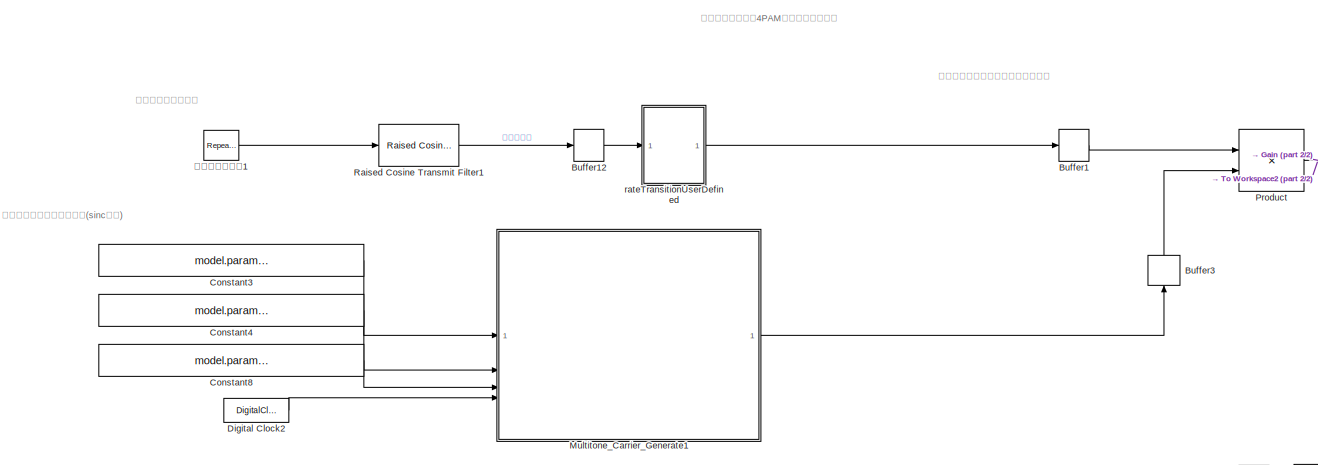
[diagram: root canvas - part 1/2, central region]
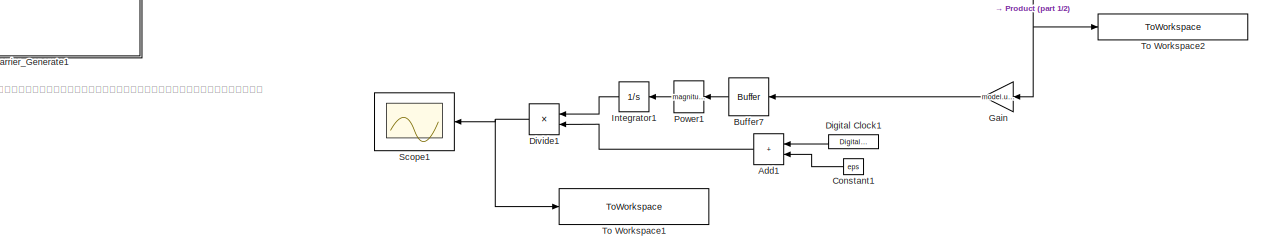
[diagram: root canvas - part 2/2, bottom center region]
MODEL slx_352db9173129
KIND model
CONFIG AbsTol = auto
CONFIG EnableMultiTasking = off
CONFIG FixedStep = auto
CONFIG InitFcn = Parameter_Initialize_5
CONFIG MaxStep = auto
CONFIG MinStep = auto
CONFIG PreLoadFcn = Parameter_Initialize_5
CONFIG RelTol = 1e-3
CONFIG SampleTimeConstraint = Unconstrained
CONFIG SolverName = VariableStepAuto
CONFIG StartTime = 0.0
CONFIG StopTime = 0.01
BLOCK [Sum] Add1
  IconShape = rectangular
  NameLocation = top
BLOCK [Buffer] Buffer1
  N = model.parameter.Raised_Cosine_Transmit_Filter.Output_samples_per_symbol
  OutputFrames = off
BLOCK [Buffer] Buffer12
  N = model.parameter.Buffer12.Output_buffer_size
  OutputFrames = off
BLOCK [Buffer] Buffer3
  N = model.parameter.Raised_Cosine_Transmit_Filter.Output_samples_per_symbol
  NameLocation = right
  OutputFrames = off
BLOCK [Buffer] Buffer7
  N = 1
  NameLocation = top
  OutputFrames = off
BLOCK [Constant] Constant1
  NameLocation = top
  SampleTime = model.parameter.channel_estimate_fs
  Value = eps
BLOCK [Constant] Constant3
  Value = model.parameter.Sine_Carrier_Num
BLOCK [Constant] Constant4
  Value = model.parameter.Sine_Carrier_Freq
BLOCK [Constant] Constant8
  Value = model.parameter.Sine_Carrier_Ampl
BLOCK [DigitalClock] Digital Clock1
  NameLocation = top
  SampleTime = model.parameter.channel_estimate_fs
BLOCK [DigitalClock] Digital Clock2
  SampleTime = model.parameter.Digital_Clock2.CarrierTs
BLOCK [Product] Divide1
  Inputs = */
  NameLocation = top
BLOCK [Gain] Gain
  Gain = model.user_defined.TR.Sig_power_controller_coeffience
  NameLocation = top
BLOCK [Integrator] Integrator1
  NameLocation = top
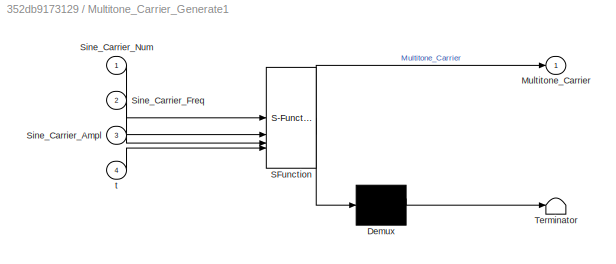
BLOCK [SubSystem] Multitone_Carrier_Generate1
  ErrorFcn = Stateflow.Translate.translate
  LibrarySourceBlock = simulink/User-Defined\nFunctions/MATLAB Function
  PermitHierarchicalResolution = ExplicitOnly
  SFBlockType = MATLAB Function
  TreatAsAtomicUnit = on
BLOCK [Demux] Multitone_Carrier_Generate1/ Demux 
  Outputs = 1
BLOCK [S-Function] Multitone_Carrier_Generate1/ SFunction 
  EnableBusSupport = on
  FunctionName = sf_sfun
  PortCounts = [4 2]
  SFcnIsStateOwnerBlock = off
  SFunctionDeploymentMode = off
  Tag = Stateflow S-Function 1
BLOCK [Terminator] Multitone_Carrier_Generate1/ Terminator 
BLOCK [Outport] Multitone_Carrier_Generate1/Multitone_Carrier
BLOCK [Inport] Multitone_Carrier_Generate1/Sine_Carrier_Ampl
  Port = 3
BLOCK [Inport] Multitone_Carrier_Generate1/Sine_Carrier_Freq
  Port = 2
BLOCK [Inport] Multitone_Carrier_Generate1/Sine_Carrier_Num
BLOCK [Inport] Multitone_Carrier_Generate1/t
  Port = 4
BLOCK [Math] Power1
  NameLocation = top
  Operator = magnitude^2
BLOCK [Product] Product
BLOCK [Reference] Raised Cosine Transmit Filter1  REF=commfilt2/Raised Cosine
Transmit Filter
  SourceBlock = commfilt2/Raised Cosine\nTransmit Filter
  SourceType = Raised Cosine Transmit Filter
BLOCK [Scope] Scope1
  Floating = off
  NameLocation = top
  NumInputPorts = 1
  ScopeSpecificationString = Simulink.scopes.TimeScopeBlockCfg('CurrentConfiguration', extmgr.ConfigurationSet(extmgr.Configuration('Core','General UI',true),extmgr.Configuration('Core','Source UI',true),extmgr.Configuration('Sources','WiredSimulink',true),extmgr.Configuration('Visuals','Time Domain',true,'SerializedDisplays',{struct('MinYLimReal','-0.00071','MaxYLimReal','0.00641','YLabelReal','','MinYLimMag','0.00000','MaxY...<+1356ch>
BLOCK [ToWorkspace] To Workspace1
  FixptAsFi = on
  MaxDataPoints = inf
  SampleTime = -1
  SaveFormat = Timeseries
  VariableName = power_estimation_result
BLOCK [ToWorkspace] To Workspace2
  FixptAsFi = on
  MaxDataPoints = inf
  SampleTime = -1
  SaveFormat = Timeseries
  VariableName = sending_modulation_wave
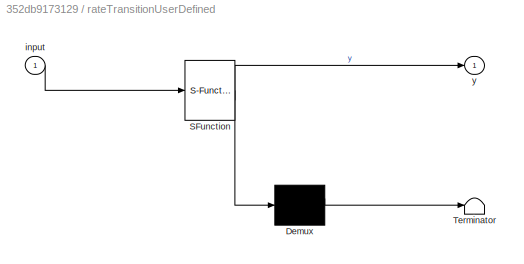
BLOCK [SubSystem] rateTransitionUserDefined
  ErrorFcn = Stateflow.Translate.translate
  LibrarySourceBlock = simulink/User-Defined\nFunctions/MATLAB Function
  PermitHierarchicalResolution = ExplicitOnly
  SFBlockType = MATLAB Function
  TreatAsAtomicUnit = on
BLOCK [Demux] rateTransitionUserDefined/ Demux 
  Outputs = 1
BLOCK [S-Function] rateTransitionUserDefined/ SFunction 
  EnableBusSupport = on
  FunctionName = sf_sfun
  PortCounts = [1 2]
  SFcnIsStateOwnerBlock = off
  SFunctionDeploymentMode = off
  Tag = Stateflow S-Function 5
BLOCK [Terminator] rateTransitionUserDefined/ Terminator 
BLOCK [Inport] rateTransitionUserDefined/input
BLOCK [Outport] rateTransitionUserDefined/y
BLOCK [Reference] 帧信号编码码元1  REF=simulink/Sources/Repeating
Sequence
Stair
  SourceBlock = simulink/Sources/Repeating\nSequence\nStair
  SourceType = Repeating Sequence Stair
ANNOTATION (root): 帧信号仿真（基于4PAM的线性调频链路）
ANNOTATION (root): 新发现：对于堆栈由大变小，当大堆栈的大小不是小堆栈大小的整数倍时，同样会产生时延
ANNOTATION (root): 射频调制模拟以及部分本地载波相加
ANNOTATION (root): 帧信号基带调制模块
ANNOTATION (root): 帧信号对应的本地载波生成(sinc信号)
LINE Add1:1 -> Divide1:2
LINE Buffer12:1 -> rateTransitionUserDefined:1
LINE Buffer1:1 -> Product:1
LINE Buffer3:1 -> Product:2
LINE Buffer7:1 -> Power1:1
LINE Constant1:1 -> Add1:2
LINE Constant3:1 -> Multitone_Carrier_Generate1:1
LINE Constant4:1 -> Multitone_Carrier_Generate1:2
LINE Constant8:1 -> Multitone_Carrier_Generate1:3
LINE Digital Clock1:1 -> Add1:1
LINE Digital Clock2:1 -> Multitone_Carrier_Generate1:4
NET Divide1:1 -> Scope1:1, To Workspace1:1
LINE Gain:1 -> Buffer7:1
LINE Integrator1:1 -> Divide1:1
LINE Multitone_Carrier_Generate1:1 -> Buffer3:1
LINE Power1:1 -> Integrator1:1
NET Product:1 -> Gain:1, To Workspace2:1
LINE Raised Cosine Transmit Filter1:1 -> Buffer12:1
LINE rateTransitionUserDefined:1 -> Buffer1:1
LINE 帧信号编码码元1:1 -> Raised Cosine Transmit Filter1:1
note: NET lines group one-source signal fan-out (src -> all destinations, sorted); 1:1 wires keep LINE
CHART Multitone_Carrier_Generate1 states=1 transitions=1
  STATE_LABEL 'eML_blk_kernel()'
  STATE_LABEL 'SCRIPT:\nfunction Multitone_Carrier = fcn(Sine_Carrier_Num, Sine_Carrier_Freq, Sine_Carrier_Ampl, t)\n    Multitone_Carrier = complex(0);\n    for index = 1:Sine_Carrier_Num\n            Multitone_subCarrier = Sine_Carrier_Ampl(index) * exp(1j*2*pi*Sine_Carrier_Freq(index)*t);\n            Multitone_Carrier = Multitone_Carrier + Multitone_subCarrier;\n    end\nend \n\n'
CHART rateTransitionUserDefined states=1 transitions=1
  STATE_LABEL 'eML_blk_kernel()'
  STATE_LABEL 'SCRIPT:\n% function y = carrierGenerator(t)\n%     fc = 5e6;\n%     y = exp(1i*2*pi*fc*t);\n\nfunction y = rateTransition(input)\n%     global rateFactor;\n%     p = rateFactor;\n    p = 10;\n    q = 1;\n    y = resample(input,p,q);\n%     y(1:100) = repmat(y(100),1,100);\n%     y(end-99:end) = repmat(y(end-99),1,100);\nend\n'
CHART  states=0 transitions=0
CHART  states=0 transitions=0
